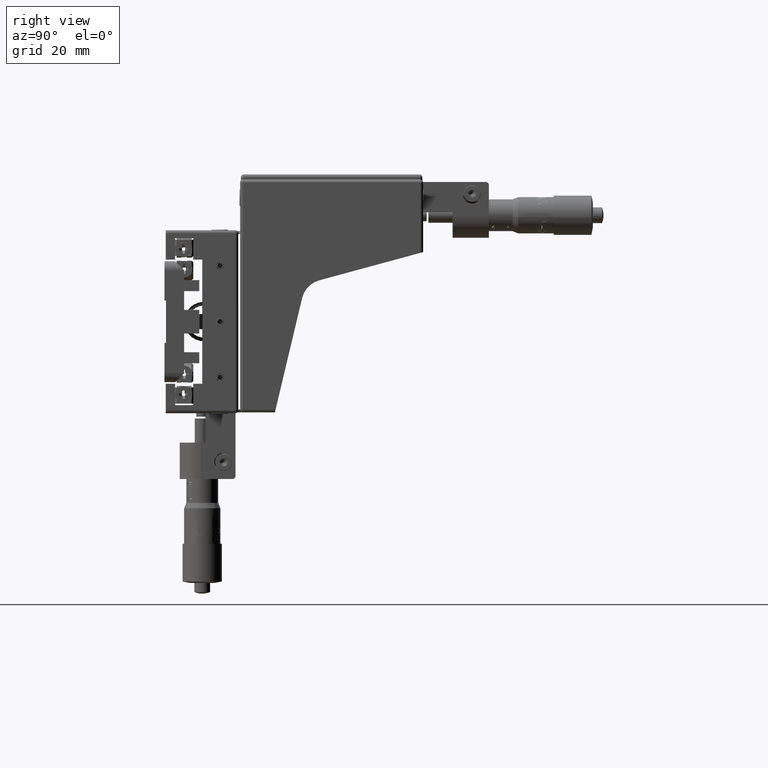
[diagram: clean part render]
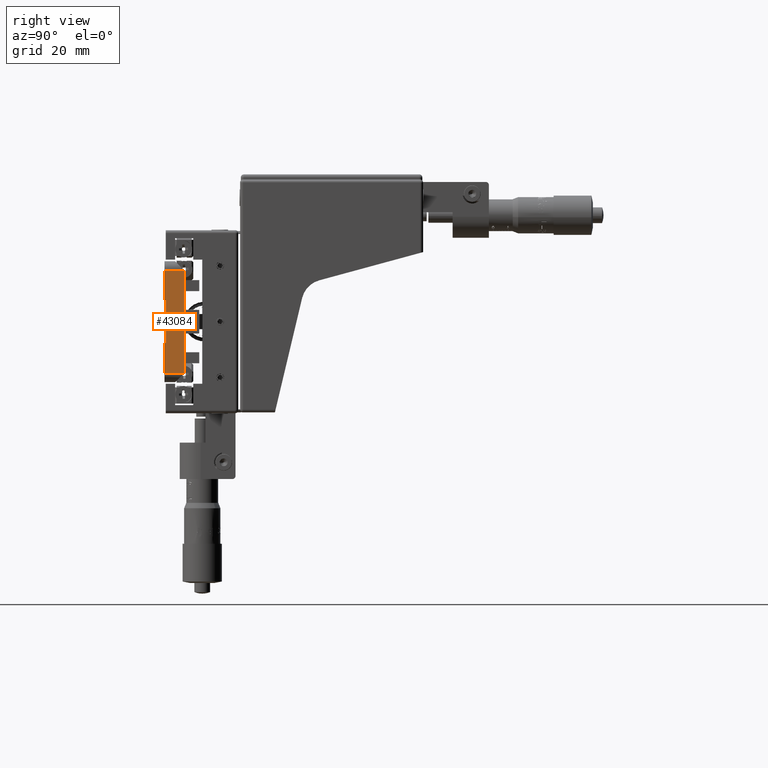
[diagram: same view with one face highlighted and labeled with its STEP entity id]
A machine part, right view. The second image highlights one B-rep face of the part: STEP entity #43084.
In plain terms, the highlighted planar face has unit normal (-1, 0, 0).
Its self-contained STEP definition (entity closure, byte-faithful):
#18 = ORIENTED_EDGE ( 'NONE', *, *, #70699, .F. ) ;
#250 = DIRECTION ( 'NONE',  ( -8.326672684688671600E-017, -1.000000000000000000, -8.673617379883996000E-015 ) ) ;
#984 = EDGE_CURVE ( 'NONE', #55505, #86756, #60672, .T. ) ;
#1261 = DIRECTION ( 'NONE',  ( 1.031748184493178700E-032, 1.239088197126311000E-016, 1.000000000000000000 ) ) ;
#3486 = LINE ( 'NONE', #40888, #19479 ) ;
#4347 = EDGE_CURVE ( 'NONE', #26933, #74713, #22385, .T. ) ;
#5321 = DIRECTION ( 'NONE',  ( 0.0000000000000000000, 0.0000000000000000000, 1.000000000000000000 ) ) ;
#5667 = VERTEX_POINT ( 'NONE', #67631 ) ;
#6131 = VECTOR ( 'NONE', #1261, 1000.000000000000000 ) ;
#8951 = LINE ( 'NONE', #23868, #24964 ) ;
#10412 = VERTEX_POINT ( 'NONE', #35050 ) ;
#11318 = VECTOR ( 'NONE', #5321, 1000.000000000000000 ) ;
#14433 = VERTEX_POINT ( 'NONE', #52395 ) ;
#18692 = CARTESIAN_POINT ( 'NONE',  ( 45.00000000000000000, 0.3000000000000311300, 6.999999999999889000 ) ) ;
#18775 = LINE ( 'NONE', #22727, #69044 ) ;
#19479 = VECTOR ( 'NONE', #250, 1000.000000000000000 ) ;
#22385 = LINE ( 'NONE', #55374, #11318 ) ;
#22727 = CARTESIAN_POINT ( 'NONE',  ( 45.00000000000000000, -0.1999999999999710300, -20.00000000000000000 ) ) ;
#23013 = EDGE_CURVE ( 'NONE', #10412, #55505, #88811, .T. ) ;
#23868 = CARTESIAN_POINT ( 'NONE',  ( 45.00000000000000000, 3.300000000000032200, -17.00000000000000000 ) ) ;
#24050 = EDGE_LOOP ( 'NONE', ( #48307, #46815, #18, #45893, #26566, #84683, #39509, #67749 ) ) ;
#24964 = VECTOR ( 'NONE', #64880, 1000.000000000000000 ) ;
#26566 = ORIENTED_EDGE ( 'NONE', *, *, #4347, .F. ) ;
#26933 = VERTEX_POINT ( 'NONE', #59001 ) ;
#27492 = EDGE_CURVE ( 'NONE', #5667, #14433, #8951, .T. ) ;
#27762 = CARTESIAN_POINT ( 'NONE',  ( 45.00000000000000000, 0.3000000000000294100, -6.999999999999885400 ) ) ;
#31420 = EDGE_CURVE ( 'NONE', #86756, #26933, #3486, .T. ) ;
#33302 = CARTESIAN_POINT ( 'NONE',  ( 45.00000000000000000, -0.1999999999999710300, -6.999999999999888100 ) ) ;
#35050 = CARTESIAN_POINT ( 'NONE',  ( 45.00000000000000000, -0.1999999999999710300, -6.999999999999774400 ) ) ;
#39509 = ORIENTED_EDGE ( 'NONE', *, *, #984, .F. ) ;
#39570 = CARTESIAN_POINT ( 'NONE',  ( 45.00000000000000000, 6.300000000000030900, -17.00000000000000000 ) ) ;
#40020 = AXIS2_PLACEMENT_3D ( 'NONE', #33302, #81185, #40167 ) ;
#40138 = DIRECTION ( 'NONE',  ( 1.111113429454173600E-031, 1.334402673828312600E-015, -1.000000000000000000 ) ) ;
#40167 = DIRECTION ( 'NONE',  ( 0.0000000000000000000, 0.0000000000000000000, 1.000000000000000000 ) ) ;
#40888 = CARTESIAN_POINT ( 'NONE',  ( 45.00000000000000000, 0.3000000000000311300, 6.999999999999889000 ) ) ;
#42180 = CARTESIAN_POINT ( 'NONE',  ( 45.00000000000000000, 0.3000000000000294100, -6.999999999999885400 ) ) ;
#43084 = ADVANCED_FACE ( 'NONE', ( #78293 ), #46783, .F. ) ;
#43513 = VERTEX_POINT ( 'NONE', #67628 ) ;
#45893 = ORIENTED_EDGE ( 'NONE', *, *, #76678, .T. ) ;
#46783 = PLANE ( 'NONE',  #40020 ) ;
#46815 = ORIENTED_EDGE ( 'NONE', *, *, #27492, .T. ) ;
#48307 = ORIENTED_EDGE ( 'NONE', *, *, #69628, .F. ) ;
#50188 = DIRECTION ( 'NONE',  ( 0.0000000000000000000, 0.0000000000000000000, 1.000000000000000000 ) ) ;
#51154 = DIRECTION ( 'NONE',  ( 8.326672684688671600E-017, 1.000000000000000000, -2.220446049250310600E-013 ) ) ;
#52395 = CARTESIAN_POINT ( 'NONE',  ( 45.00000000000000000, 6.300000000000030900, -17.00000000000000000 ) ) ;
#55374 = CARTESIAN_POINT ( 'NONE',  ( 45.00000000000000000, -0.1999999999999710300, 6.999999999999884500 ) ) ;
#55505 = VERTEX_POINT ( 'NONE', #27762 ) ;
#56428 = CARTESIAN_POINT ( 'NONE',  ( 45.00000000000000000, -0.1999999999999710300, 17.00000000000000000 ) ) ;
#56952 = CARTESIAN_POINT ( 'NONE',  ( 45.00000000000000000, -0.1999999999999710300, 17.00000000000000000 ) ) ;
#58061 = CARTESIAN_POINT ( 'NONE',  ( 45.00000000000000000, 0.3000000000000294100, -6.999999999999885400 ) ) ;
#59001 = CARTESIAN_POINT ( 'NONE',  ( 45.00000000000000000, -0.1999999999999710300, 6.999999999999884500 ) ) ;
#59145 = VECTOR ( 'NONE', #40138, 1000.000000000000000 ) ;
#60672 = LINE ( 'NONE', #42180, #6131 ) ;
#64150 = DIRECTION ( 'NONE',  ( -8.326672684688671600E-017, -1.000000000000000000, -0.0000000000000000000 ) ) ;
#64577 = VECTOR ( 'NONE', #64150, 1000.000000000000000 ) ;
#64880 = DIRECTION ( 'NONE',  ( 8.326672684688671600E-017, 1.000000000000000000, -0.0000000000000000000 ) ) ;
#67628 = CARTESIAN_POINT ( 'NONE',  ( 45.00000000000000000, 6.300000000000030900, 17.00000000000000000 ) ) ;
#67631 = CARTESIAN_POINT ( 'NONE',  ( 45.00000000000000000, -0.1999999999999710300, -17.00000000000000000 ) ) ;
#67749 = ORIENTED_EDGE ( 'NONE', *, *, #23013, .F. ) ;
#69044 = VECTOR ( 'NONE', #50188, 1000.000000000000000 ) ;
#69628 = EDGE_CURVE ( 'NONE', #5667, #10412, #18775, .T. ) ;
#70603 = VECTOR ( 'NONE', #51154, 1000.000000000000000 ) ;
#70699 = EDGE_CURVE ( 'NONE', #43513, #14433, #77278, .T. ) ;
#74713 = VERTEX_POINT ( 'NONE', #56428 ) ;
#76678 = EDGE_CURVE ( 'NONE', #43513, #74713, #82745, .T. ) ;
#77278 = LINE ( 'NONE', #39570, #59145 ) ;
#78293 = FACE_OUTER_BOUND ( 'NONE', #24050, .T. ) ;
#81185 = DIRECTION ( 'NONE',  ( -1.000000000000000000, 1.110223024625156500E-016, 0.0000000000000000000 ) ) ;
#82745 = LINE ( 'NONE', #56952, #64577 ) ;
#84683 = ORIENTED_EDGE ( 'NONE', *, *, #31420, .F. ) ;
#86756 = VERTEX_POINT ( 'NONE', #18692 ) ;
#88811 = LINE ( 'NONE', #58061, #70603 ) ;